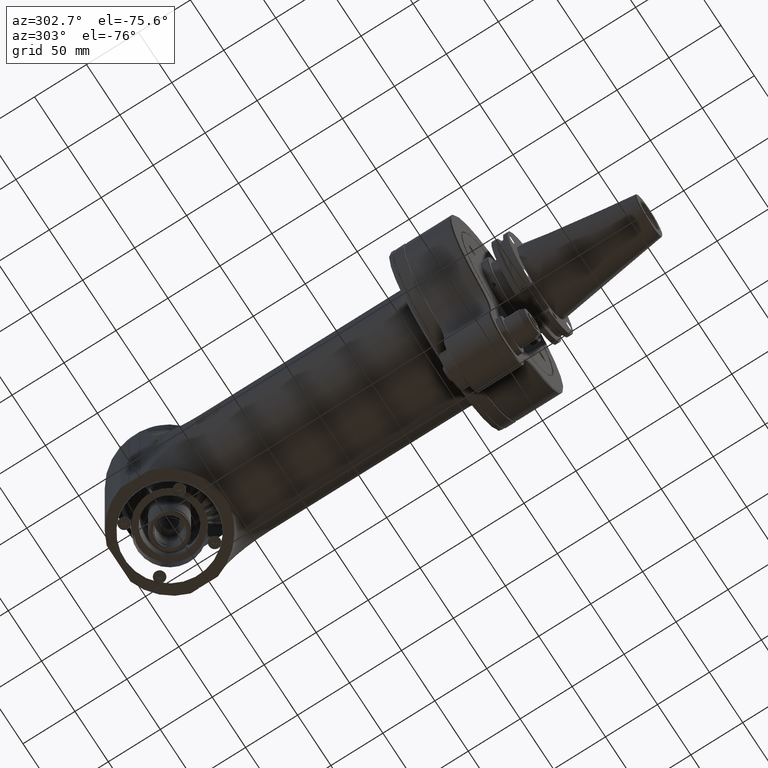
[diagram: clean part render]
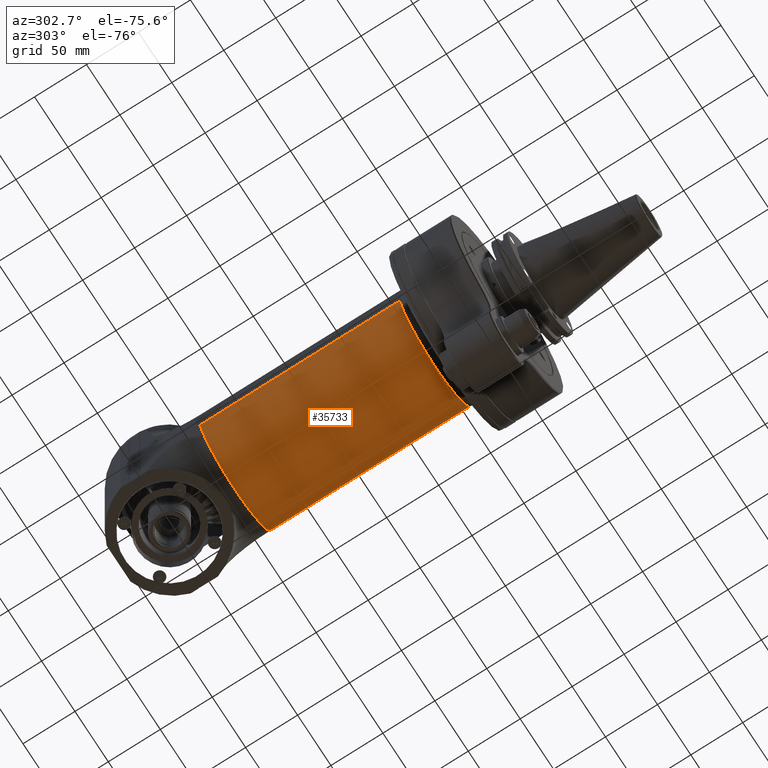
[diagram: same view with one face highlighted and labeled with its STEP entity id]
A machine part, auxiliary view. The second image highlights one B-rep face of the part: STEP entity #35733.
In plain terms, the highlighted cylindrical surface (partial cylindrical patch) has radius 55 mm, axis along (-0, 1, -0).
Its self-contained STEP definition (entity closure, byte-faithful):
#1201=LINE('',#52569,#4491);
#1548=LINE('',#53311,#4838);
#4491=VECTOR('',#41752,7.55905511811024);
#4838=VECTOR('',#42135,7.55905511811024);
#7775=CYLINDRICAL_SURFACE('',#37956,2.16535433070866);
#8527=FACE_OUTER_BOUND('',#10659,.T.);
#10659=EDGE_LOOP('',(#24032,#24033,#24034,#24035));
#13002=CIRCLE('',#37955,2.16535433070866);
#13003=CIRCLE('',#37957,2.16535433070866);
#14550=VERTEX_POINT('',#52566);
#14551=VERTEX_POINT('',#52568);
#14893=VERTEX_POINT('',#53308);
#14894=VERTEX_POINT('',#53310);
#18147=EDGE_CURVE('',#14551,#14550,#1201,.T.);
#18502=EDGE_CURVE('',#14893,#14894,#1548,.T.);
#18504=EDGE_CURVE('',#14550,#14894,#13002,.T.);
#18505=EDGE_CURVE('',#14551,#14893,#13003,.T.);
#24032=ORIENTED_EDGE('',*,*,#18147,.T.);
#24033=ORIENTED_EDGE('',*,*,#18504,.T.);
#24034=ORIENTED_EDGE('',*,*,#18502,.F.);
#24035=ORIENTED_EDGE('',*,*,#18505,.F.);
#35733=ADVANCED_FACE('',(#8527),#7775,.T.);
#37955=AXIS2_PLACEMENT_3D('',#53314,#42140,#42141);
#37956=AXIS2_PLACEMENT_3D('',#53315,#42142,#42143);
#37957=AXIS2_PLACEMENT_3D('',#53316,#42144,#42145);
#41752=DIRECTION('',(0.,1.,0.));
#42135=DIRECTION('',(0.,1.,0.));
#42140=DIRECTION('center_axis',(0.,-1.,0.));
#42141=DIRECTION('ref_axis',(-0.954545454545451,0.,-0.298065387468285));
#42142=DIRECTION('center_axis',(0.,1.,0.));
#42143=DIRECTION('ref_axis',(1.,0.,0.));
#42144=DIRECTION('center_axis',(0.,-1.,0.));
#42145=DIRECTION('ref_axis',(-0.954545454545451,0.,-0.298065387468285));
#52566=CARTESIAN_POINT('',(-2.06692913385827,9.84251968503937,-0.645417177588976));
#52568=CARTESIAN_POINT('',(-2.06692913385827,2.28346456692913,-0.645417177588976));
#52569=CARTESIAN_POINT('',(-2.06692913385827,2.28346456692913,-0.645417177588976));
#53308=CARTESIAN_POINT('',(2.06692913385827,2.28346456692913,-0.645417177588976));
#53310=CARTESIAN_POINT('',(2.06692913385827,9.84251968503937,-0.645417177588583));
#53311=CARTESIAN_POINT('',(2.06692913385827,2.28346456692913,-0.645417177588976));
#53314=CARTESIAN_POINT('Origin',(6.02680511391339E-16,9.84251968503937,
0.));
#53315=CARTESIAN_POINT('Origin',(0.,-0.616141732283465,0.));
#53316=CARTESIAN_POINT('Origin',(0.,2.28346456692913,0.));